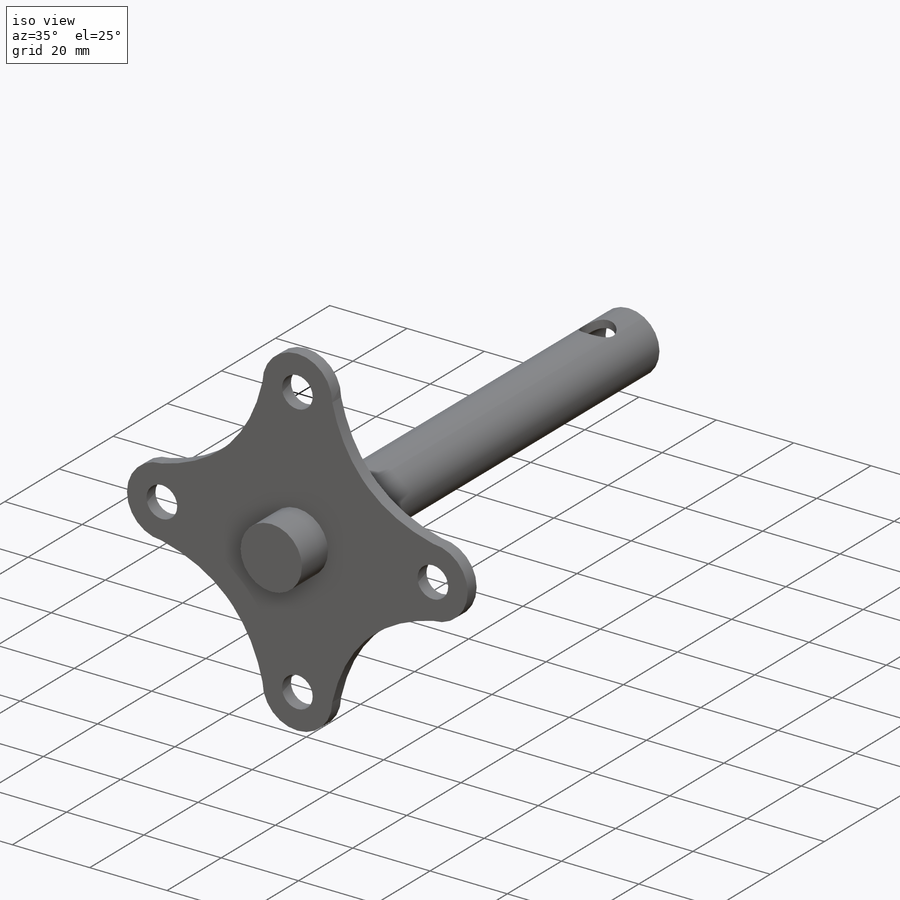
[diagram: iso view]
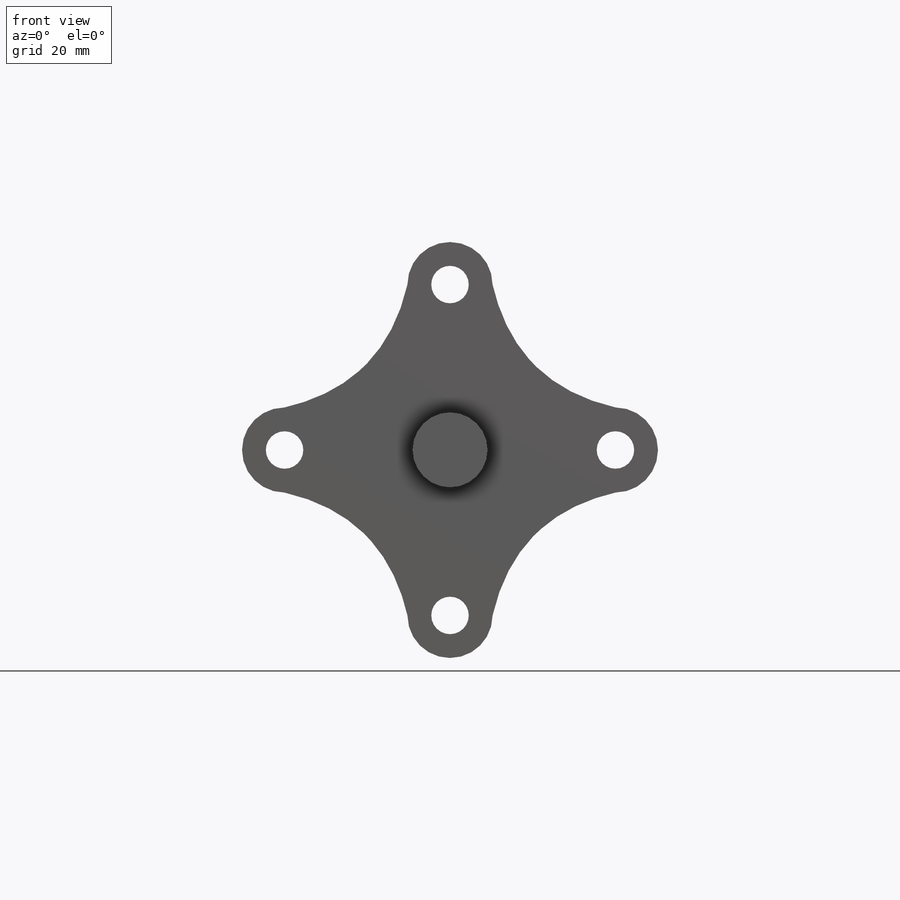
[diagram: front view]
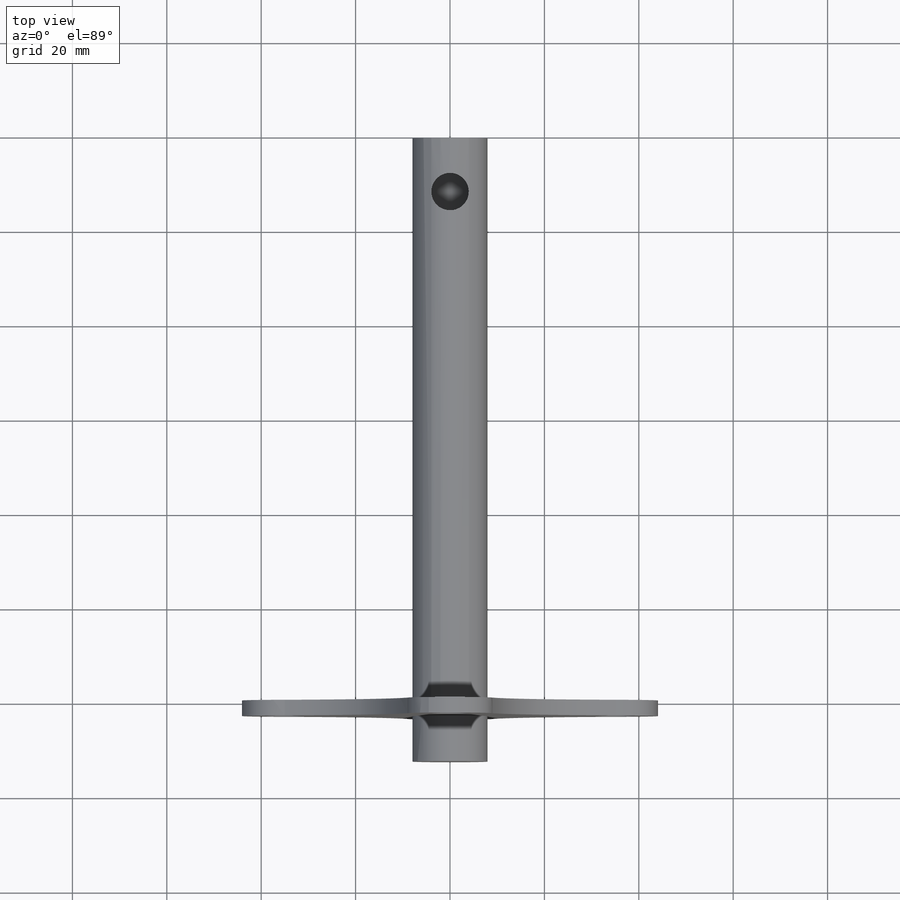
[diagram: top view]
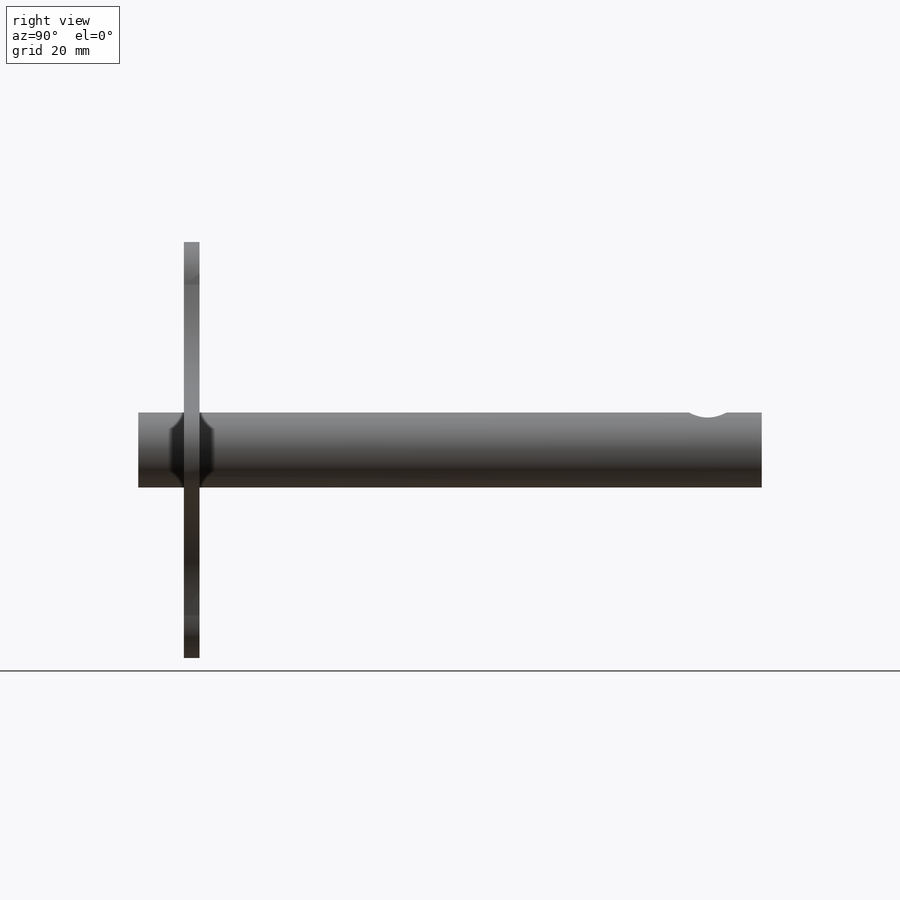
[diagram: right view]
SOLIDWORKS PART (.sldprt)
format: sldprt  version: not decoded by parser v0  size: 222,720 bytes
history: native  units: mm
features: sketch x5, extrude x3, cut_extrude x2, material x1, plane x1 (+12 scaffold rows collapsed)
feature tree (24):
  scaffold x12  (default folders/planes/origin — collapsed)
  material  "6061-T6 (SS)"
  sketch  "Sketch1"  dims[c1.D2=7.9375mm c1.D1=44.069mm c1.D3=35.052mm c1.D5=25.4mm c1.D6=~18.13603mm c1.D4=4.0 c2.D6=4.0]
  extrude  "Boss-Extrude1"  Depth=3.302mm
  sketch  "Sketch2"  dims[D1=15.875mm]
  extrude  "Boss-Extrude2"  Depth=9.652mm
  sketch  "Sketch3"  dims[D1=15.875mm]
  extrude  "Boss-Extrude3"  Depth=119.126mm
  sketch  "Sketch4"  dims[D1=12.0mm]
  cut_extrude  "Cut-Extrude1"  Depth=25.4mm
  plane  "Plane1"  Offset=10.16mm
  sketch  "Sketch5"  dims[D2=7.9375mm D1=107.696mm]
  cut_extrude  "Cut-Extrude2"  [1 undecoded]
decode coverage: 9 of 10 modeling features carry decoded parameters
note: ~ marks probable driven/reference dimensions
note: 1 parameter value undecoded
note: suppression state not decoded; provenance and decode notes live in map.json
